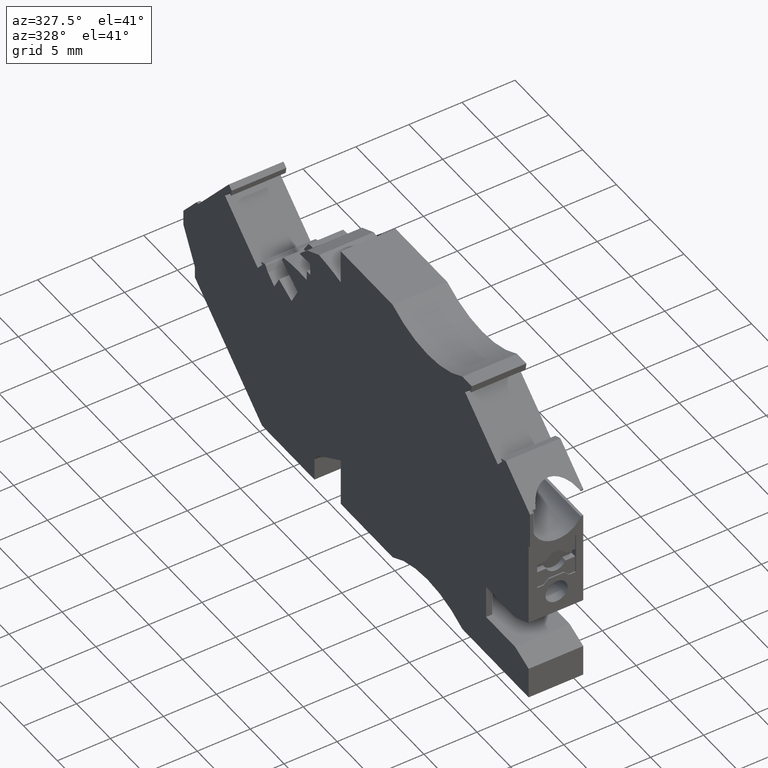
[diagram: clean part render]
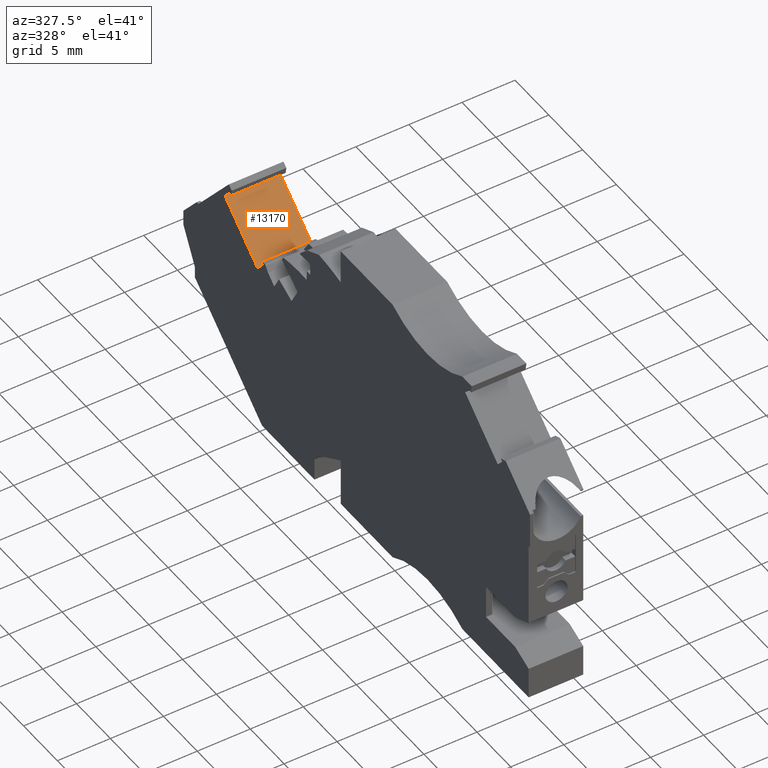
[diagram: same view with one face highlighted and labeled with its STEP entity id]
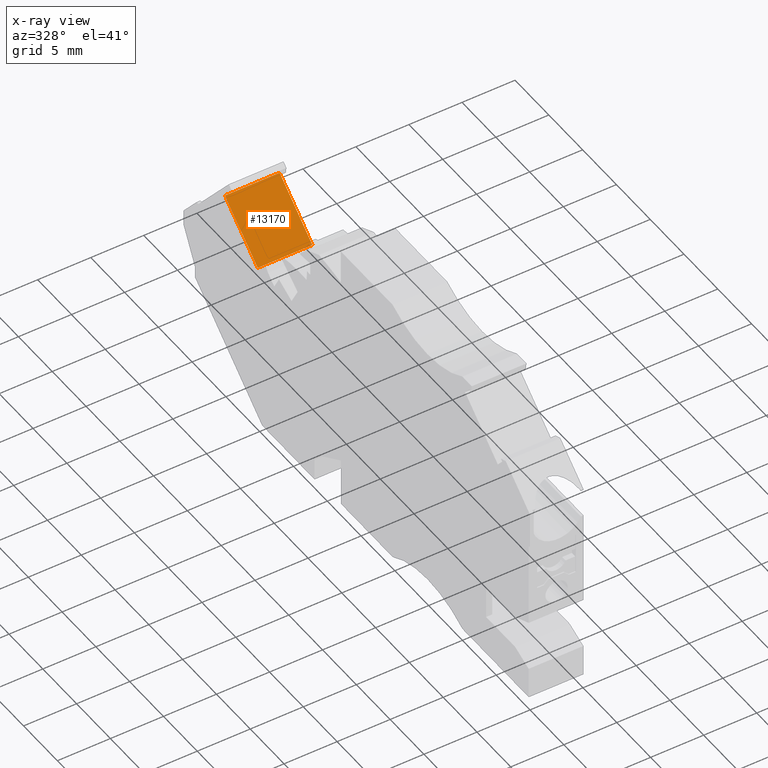
[diagram: x-ray of the same camera — body ghosted, the highlighted face saturated]
A machine part, auxiliary view. The second image highlights one B-rep face of the part: STEP entity #13170.
The next image is the same camera in x-ray: the body ghosted, the highlighted face saturated — about 0% of this face is hidden behind the body in this view.
In plain terms, the highlighted planar face has unit normal (-0, 0.6428, -0.766).
Its self-contained STEP definition (entity closure, byte-faithful):
#12780=CARTESIAN_POINT('',(465.396500893659,690.841400309287,
113.67499756618));
#12790=DIRECTION('',(0.642787610017643,-0.766044442841149,
-3.11801504960317E-10));
#12800=DIRECTION('',(-0.766044442841149,-0.642787610017643,
1.72907689336351E-10));
#12810=AXIS2_PLACEMENT_3D('',#12780,#12790,#12800);
#12820=PLANE('',#12810);
#12830=CARTESIAN_POINT('',(460.551269792688,686.775768675926,
113.674997567273));
#12840=DIRECTION('',(3.32877193696472E-10,-1.27710826844375E-10,1.));
#12850=VECTOR('',#12840,1.);
#12860=LINE('',#12830,#12850);
#12870=CARTESIAN_POINT('',(460.551269786978,686.775768678116,
96.5199999880561));
#12880=VERTEX_POINT('',#12870);
#12890=CARTESIAN_POINT('',(460.551269788692,686.775768677459,
101.669999982256));
#12900=VERTEX_POINT('',#12890);
#12910=EDGE_CURVE('',#12880,#12900,#12860,.T.);
#12920=ORIENTED_EDGE('',*,*,#12910,.T.);
#12930=CARTESIAN_POINT('',(438.571064188992,668.332186251456,
96.5199999898597));
#12940=DIRECTION('',(-0.766044442841149,-0.642787610017643,
6.2859209096832E-11));
#12950=VECTOR('',#12940,1.);
#12960=LINE('',#12930,#12950);
#12970=CARTESIAN_POINT('',(465.396500890797,690.841400313869,
96.5199999876585));
#12980=VERTEX_POINT('',#12970);
#12990=EDGE_CURVE('',#12980,#12880,#12960,.T.);
#13000=ORIENTED_EDGE('',*,*,#12990,.T.);
#13010=CARTESIAN_POINT('',(465.396500893659,690.841400309287,
113.67499756618));
#13020=DIRECTION('',(3.32877193696472E-10,-1.27710826844375E-10,1.));
#13030=VECTOR('',#13020,1.);
#13040=LINE('',#13010,#13030);
#13050=CARTESIAN_POINT('',(465.396500889662,690.841400310821,
101.669999981162));
#13060=VERTEX_POINT('',#13050);
#13070=EDGE_CURVE('',#12980,#13060,#13040,.T.);
#13080=ORIENTED_EDGE('',*,*,#13070,.F.);
#13090=CARTESIAN_POINT('',(438.571064111763,668.332186184558,
101.669999987217));
#13100=DIRECTION('',(-0.766044442841149,-0.642787610017643,
1.72907684126898E-10));
#13110=VECTOR('',#13100,1.);
#13120=LINE('',#13090,#13110);
#13130=EDGE_CURVE('',#13060,#12900,#13120,.T.);
#13140=ORIENTED_EDGE('',*,*,#13130,.F.);
#13150=EDGE_LOOP('',(#13140,#13080,#13000,#12920));
#13160=FACE_OUTER_BOUND('',#13150,.T.);
#13170=ADVANCED_FACE('',(#13160),#12820,.F.);